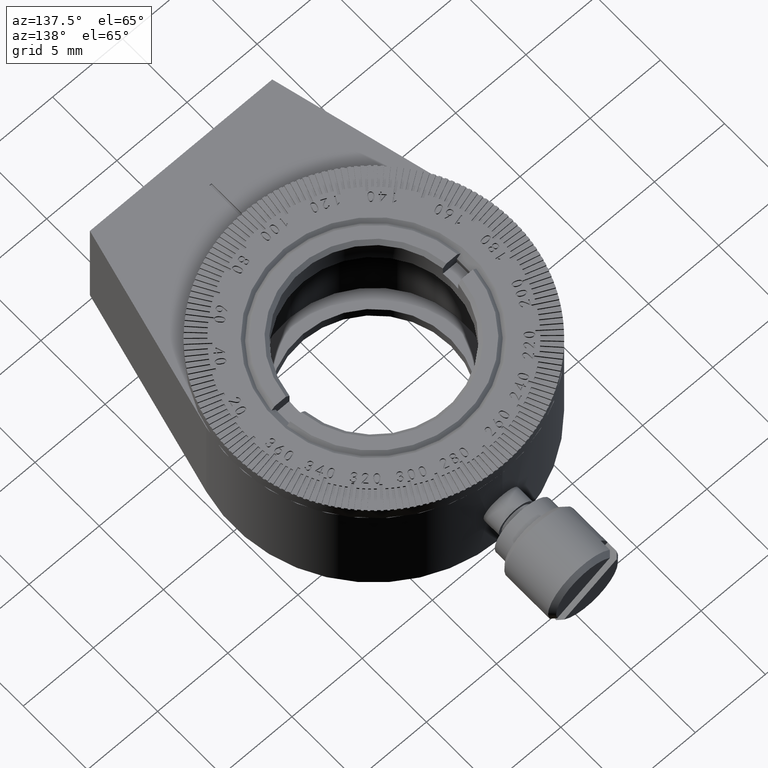
[diagram: clean part render]
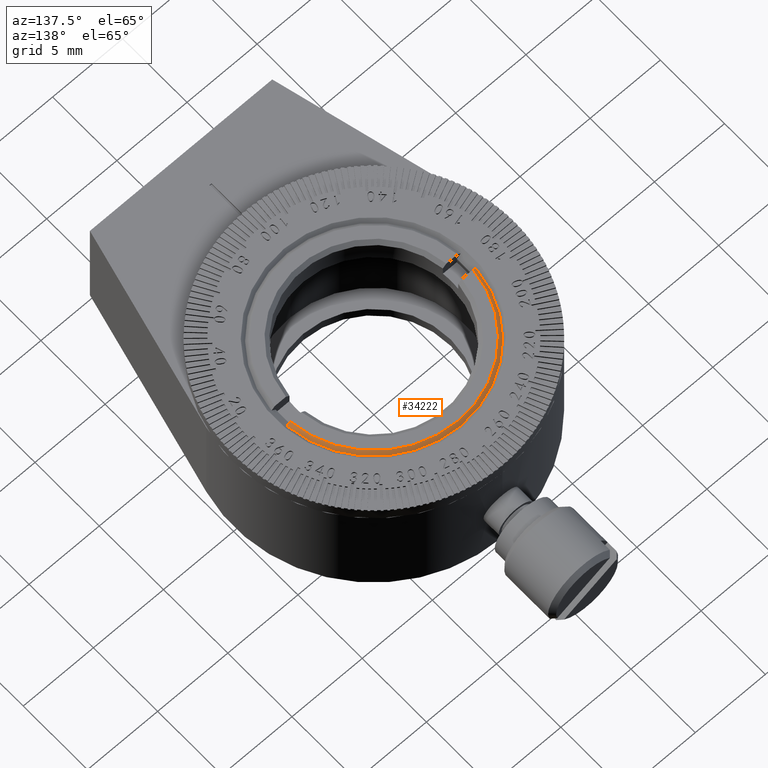
[diagram: same view with one face highlighted and labeled with its STEP entity id]
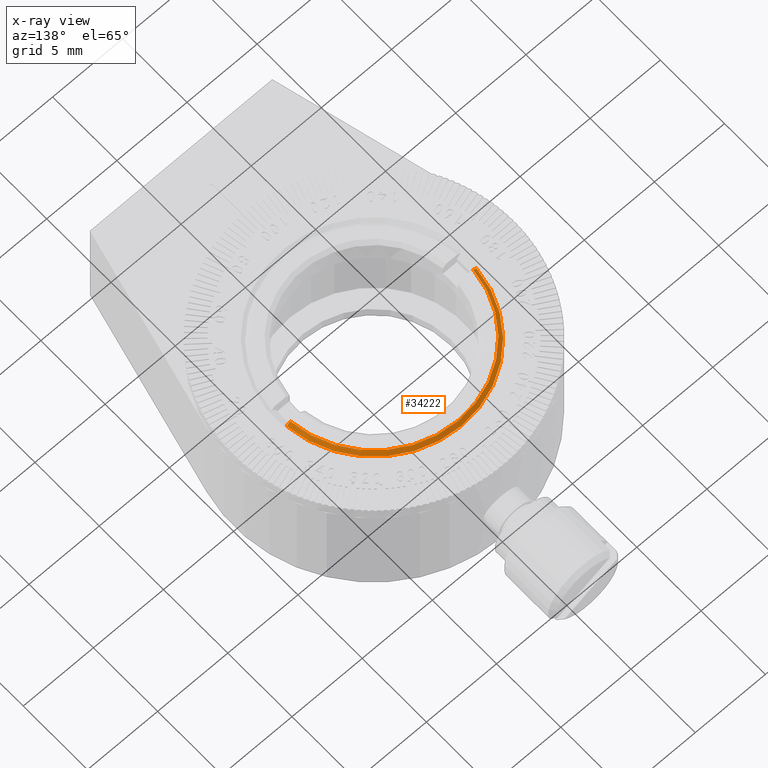
[diagram: x-ray of the same camera — body ghosted, the highlighted face saturated]
A machine part, auxiliary view. The second image highlights one B-rep face of the part: STEP entity #34222.
The next image is the same camera in x-ray: the body ghosted, the highlighted face saturated — about 0% of this face is hidden behind the body in this view.
In plain terms, the highlighted conical surface has half-angle 45 deg.
Its self-contained STEP definition (entity closure, byte-faithful):
#3974 = CARTESIAN_POINT ( 'NONE',  ( 6.601119174826215463, 0.6000000000000000888, 8.916673249287558889 ) ) ;
#5200 = ORIENTED_EDGE ( 'NONE', *, *, #55745, .F. ) ;
#8444 = CARTESIAN_POINT ( 'NONE',  ( 6.517440064933472499, 0.6000000000000000888, 9.000000000000001776 ) ) ;
#8770 = CARTESIAN_POINT ( 'NONE',  ( -6.768458096198870066, 0.6000000000000000888, 8.750000000000005329 ) ) ;
#10152 = AXIS2_PLACEMENT_3D ( 'NONE', #15852, #54691, #30485 ) ;
#11699 = AXIS2_PLACEMENT_3D ( 'NONE', #51234, #13330, #41665 ) ;
#12639 = EDGE_LOOP ( 'NONE', ( #5200, #59408, #59065, #61601 ) ) ;
#12717 = VERTEX_POINT ( 'NONE', #51401 ) ;
#13214 = CARTESIAN_POINT ( 'NONE',  ( 6.768458096198864737, 0.6000000000000000888, 8.750000000000005329 ) ) ;
#13330 = DIRECTION ( 'NONE',  ( 0.000000000000000000, 0.000000000000000000, 1.000000000000000000 ) ) ;
#14130 = VERTEX_POINT ( 'NONE', #16310 ) ;
#15852 = CARTESIAN_POINT ( 'NONE',  ( -2.469511555465232972E-15, -2.172448977268806421E-31, 8.750000000000005329 ) ) ;
#16310 = CARTESIAN_POINT ( 'NONE',  ( 6.768458096198864737, 0.6000000000000000888, 8.750000000000005329 ) ) ;
#17188 = EDGE_CURVE ( 'NONE', #30476, #62279, #60762, .T. ) ;
#18979 = B_SPLINE_CURVE_WITH_KNOTS ( 'NONE', 3,
 ( #13214, #23723, #3974, #8444 ),
 .UNSPECIFIED., .F., .F.,
 ( 4, 4 ),
 ( 9.918469259742692008E-07, 0.0003552499122487280821 ),
 .UNSPECIFIED. ) ;
#20207 = FACE_OUTER_BOUND ( 'NONE', #12639, .T. ) ;
#23723 = CARTESIAN_POINT ( 'NONE',  ( 6.684791614305440888, 0.6000000000000000888, 8.833339672811193921 ) ) ;
#24682 = CARTESIAN_POINT ( 'NONE',  ( -2.469511555465232972E-15, -2.172448977268806421E-31, 9.000000000000001776 ) ) ;
#25274 = DIRECTION ( 'NONE',  ( 0.000000000000000000, 0.000000000000000000, -1.000000000000000000 ) ) ;
#27501 = AXIS2_PLACEMENT_3D ( 'NONE', #24682, #25274, #44393 ) ;
#30476 = VERTEX_POINT ( 'NONE', #55756 ) ;
#30485 = DIRECTION ( 'NONE',  ( 1.000000000000000000, 0.000000000000000000, 0.000000000000000000 ) ) ;
#32779 = EDGE_CURVE ( 'NONE', #62279, #14130, #33503, .T. ) ;
#33503 = CIRCLE ( 'NONE', #10152, 6.794999999999999929 ) ;
#33603 = CONICAL_SURFACE ( 'NONE', #27501, 6.545000000000005258, 0.7853981633974466137 ) ;
#34222 = ADVANCED_FACE ( 'NONE', ( #20207 ), #33603, .T. ) ;
#37477 = CARTESIAN_POINT ( 'NONE',  ( -6.768458096198870066, 0.6000000000000000888, 8.750000000000005329 ) ) ;
#38053 = CARTESIAN_POINT ( 'NONE',  ( -6.517440064933477828, 0.6000000000000000888, 9.000000000000001776 ) ) ;
#41665 = DIRECTION ( 'NONE',  ( 1.000000000000000000, 0.000000000000000000, 0.000000000000000000 ) ) ;
#42826 = CARTESIAN_POINT ( 'NONE',  ( -6.601119226786326344, 0.6000000000000000888, 8.916673197546250762 ) ) ;
#44393 = DIRECTION ( 'NONE',  ( -1.000000000000000000, 0.000000000000000000, 0.000000000000000000 ) ) ;
#51234 = CARTESIAN_POINT ( 'NONE',  ( -2.469511555465232972E-15, -2.172448977268806421E-31, 9.000000000000001776 ) ) ;
#51401 = CARTESIAN_POINT ( 'NONE',  ( 6.517440064933472499, 0.6000000000000000888, 9.000000000000001776 ) ) ;
#52390 = CARTESIAN_POINT ( 'NONE',  ( -6.684791664338681549, 0.6000000000000000888, 8.833339622973394256 ) ) ;
#54691 = DIRECTION ( 'NONE',  ( 0.000000000000000000, 0.000000000000000000, -1.000000000000000000 ) ) ;
#55745 = EDGE_CURVE ( 'NONE', #14130, #12717, #18979, .T. ) ;
#55756 = CARTESIAN_POINT ( 'NONE',  ( -6.517440064933477828, 0.6000000000000000888, 9.000000000000001776 ) ) ;
#58485 = EDGE_CURVE ( 'NONE', #12717, #30476, #58495, .T. ) ;
#58495 = CIRCLE ( 'NONE', #11699, 6.545000000000005258 ) ;
#59065 = ORIENTED_EDGE ( 'NONE', *, *, #17188, .F. ) ;
#59408 = ORIENTED_EDGE ( 'NONE', *, *, #32779, .F. ) ;
#60762 = B_SPLINE_CURVE_WITH_KNOTS ( 'NONE', 3,
 ( #38053, #42826, #52390, #8770 ),
 .UNSPECIFIED., .F., .F.,
 ( 4, 4 ),
 ( 0.01810251681130899820, 0.01845672730272878218 ),
 .UNSPECIFIED. ) ;
#61601 = ORIENTED_EDGE ( 'NONE', *, *, #58485, .F. ) ;
#62279 = VERTEX_POINT ( 'NONE', #37477 ) ;